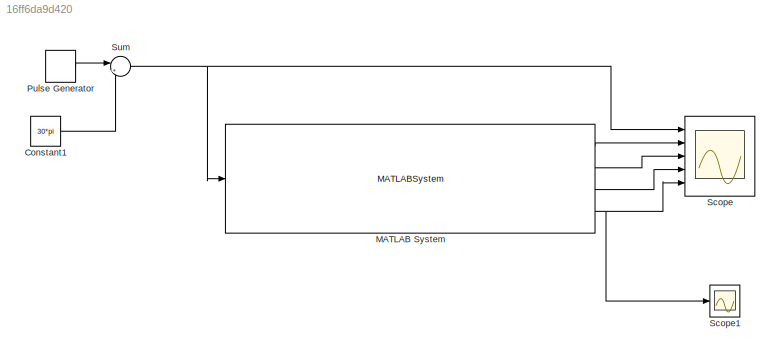
MODEL slx_16ff6da9d420
KIND model
CONFIG AbsTol = auto
CONFIG EnableMultiTasking = on
CONFIG FixedStep = 1/50
CONFIG MaxStep = auto
CONFIG MinStep = auto
CONFIG RelTol = 1e-3
CONFIG SampleTimeConstraint = Unconstrained
CONFIG Solver = FixedStepDiscrete
CONFIG SolverName = FixedStepDiscrete
CONFIG StartTime = 0.0
CONFIG StopTime = 100
BLOCK [Constant] Constant1
  Value = 30*pi
BLOCK [MATLABSystem] MATLAB System
  Autocalibration = Autocalibrate
  Baudrate = 115200
  ControlMode0 = Position
  ControlMode1 = Position
  CountsPerRotate0 = 8192
  CountsPerRotate1 = 8192
  CurrentLimit0 = 65
  CurrentLimit1 = 65
  EnableAxis0 = on
  EnableAxis1 = off
  EnableCurrent0Output = on
  EnableCurrent1Output = off
  EnableError0Output = off
  EnableError1Output = off
  EnablePosition0Output = on
  EnablePosition1Output = off
  EnableTiming = off
  EnableVbusOutput = on
  EnableVelocity0Output = on
  EnableVelocity1Output = off
  Inputs = {}
  MaskDisplay = disp(['ODrive' char(10) 'Port: /dev/ttyS0' char(10) ' Baudrate: 115200']);\nport_label('input',1,'Axis 0 Reference position');\nport_label('output',1,'Axis 0 Estimated position [rad]');\nport_label('output',2,'Axis 0 Estimated velocity [rad/s]');\nport_label('output',3,'Axis 0 Measured current [A]');\nport_label('output',4,'Bus voltage [V]');
  MaskType = ODrive
  MaxInputParameters = 20
  MaxOutputParameters = 20
  Outputs = {  }
  Port = /dev/ttyS0
  Ports = [1, 4]
  ResetErrors0 = on
  ResetErrors1 = on
  System = ODrive
  UseIndex0 = on
  UseIndex1 = on
  VelocityLimit0 = 20*pi
  VelocityLimit1 = 20*pi
BLOCK [DiscretePulseGenerator] Pulse Generator
  Amplitude = 80*pi
  Period = 5
  Ports = [0, 1]
  PulseType = Time based
  PulseWidth = 50
BLOCK [Scope] Scope
  Floating = off
  NumInputPorts = 5
  Ports = [5]
  ScopeSpecificationString = Simulink.scopes.TimeScopeBlockCfg('CurrentConfiguration', extmgr.ConfigurationSet(extmgr.Configuration('Core','General UI',true),extmgr.Configuration('Core','Source UI',true),extmgr.Configuration('Sources','WiredSimulink',true),extmgr.Configuration('Visuals','Time Domain',true,'SerializedDisplays',{struct('MinYLimReal','-125.66371','MaxYLimReal','188.49556','YLabelReal','','MinYLimMag',' 0.00000',...<+1559ch>
BLOCK [Scope] Scope1
  Floating = off
  NumInputPorts = 1
  Ports = [1]
  ScopeSpecificationString = Simulink.scopes.TimeScopeBlockCfg('CurrentConfiguration', extmgr.ConfigurationSet(extmgr.Configuration('Core','General UI',true),extmgr.Configuration('Core','Source UI',true),extmgr.Configuration('Sources','WiredSimulink',true,'DataLoggingVariableName','ScopeData1'),extmgr.Configuration('Visuals','Time Domain',true),extmgr.Configuration('Tools','Plot Navigation',true),extmgr.Configuration('Tools',...<+40ch>
BLOCK [Sum] Sum
  IconShape = round
  InputSameDT = off
  Inputs = |+-
  OutDataTypeStr = Inherit: Inherit via internal rule
  Ports = [2, 1]
  SaturateOnIntegerOverflow = off
LINE Constant1:1 -> Sum:2
LINE MATLAB System:1 -> Scope:2
LINE MATLAB System:2 -> Scope:3
LINE MATLAB System:3 -> Scope:4
NET MATLAB System:4 -> Scope1:1, Scope:5
LINE Pulse Generator:1 -> Sum:1
NET Sum:1 -> MATLAB System:1, Scope:1
note: NET lines group one-source signal fan-out (src -> all destinations, sorted); 1:1 wires keep LINE
